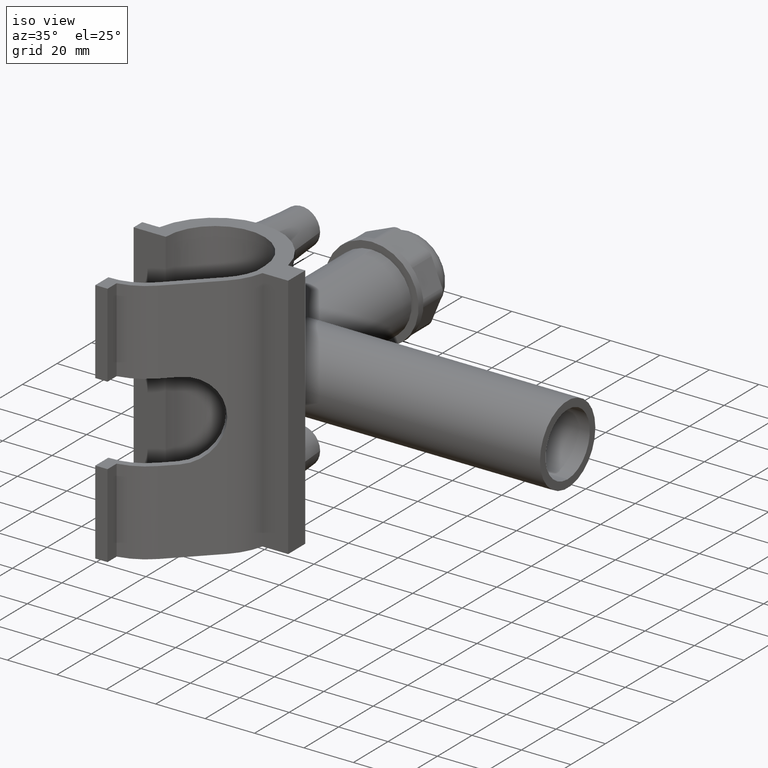
[diagram: clean part render]
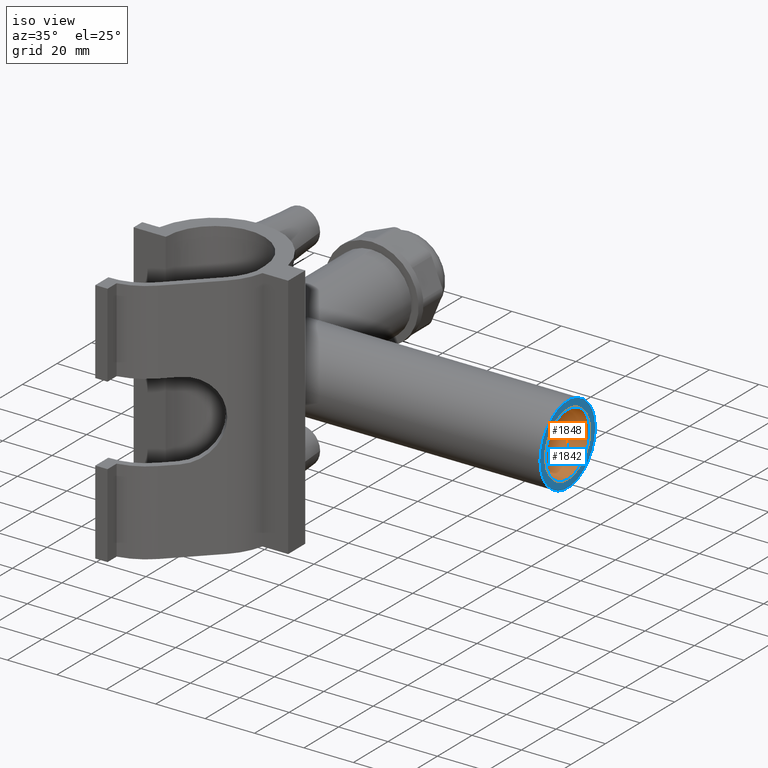
[diagram: same view with the hole feature highlighted: cylindrical wall and planar end face, labeled with their STEP entity ids]
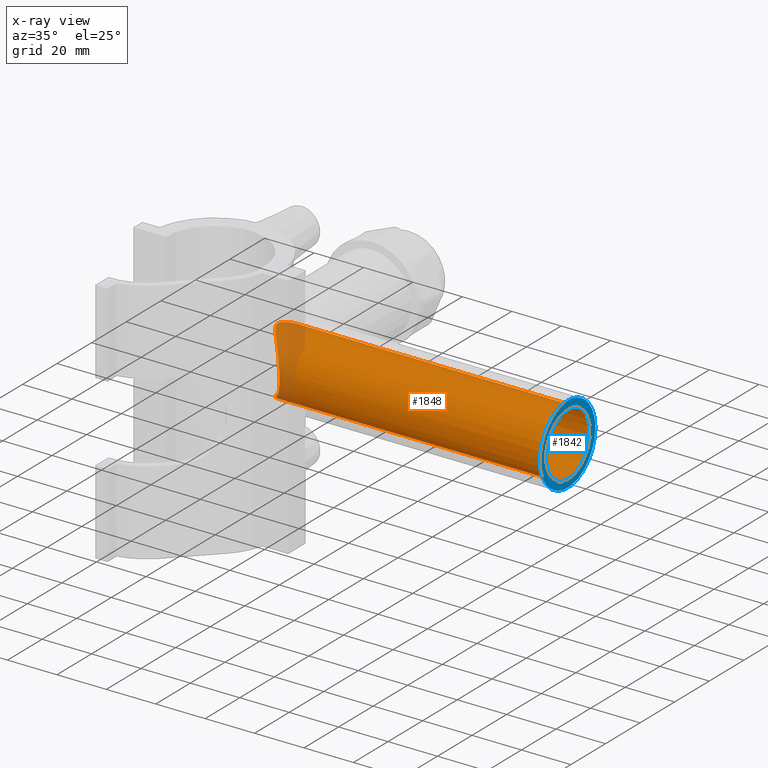
[diagram: x-ray of the same camera — body ghosted, the hole faces saturated]
A machine part, iso view. The highlighted faces form one hole feature of diameter 25.6 mm: the cylindrical wall (entity #1848, orange) and its adjacent planar end face (entity #1842, blue) — they share a circular edge in the B-rep.
The next image is the same camera in x-ray (body ghosted, the hole faces saturated) — the bore reads through the body.
Wall:
#62=FACE_BOUND('',#417,.T.);
#88=B_SPLINE_CURVE_WITH_KNOTS('',3,(#3506,#3507,#3508,#3509,#3510,#3511,
#3512,#3513,#3514,#3515,#3516,#3517,#3518,#3519,#3520,#3521,#3522,#3523,
#3524,#3525,#3526,#3527,#3528,#3529,#3530,#3531,#3532,#3533,#3534,#3535,
#3536,#3537,#3538,#3539,#3540,#3541,#3542,#3543,#3544,#3545,#3546,#3547,
#3548,#3549,#3550,#3551,#3552,#3553,#3554,#3555,#3556,#3557,#3558,#3559,
#3560,#3561,#3562,#3563,#3564,#3565,#3566,#3567,#3568,#3569,#3570,#3571),
 .UNSPECIFIED.,.T.,.F.,(4,2,2,2,2,2,2,2,2,2,2,2,2,2,2,2,2,2,2,2,2,2,2,2,
2,2,2,2,2,2,2,2,4),(0.,0.15231010215146,0.30462020430292,0.609240408605839,
0.913860612908759,1.21848081721168,1.74335062384617,2.00578552716342,2.26822043048067,
2.53065533379791,2.79309023711516,3.31796004374965,3.62258024805257,3.92720045235549,
4.2318206566584,4.38413075880986,4.53644086096132,4.68875096311278,4.84106106526424,
5.14568126956716,5.45030147387007,5.75492167817299,6.27979148480748,6.54222638812473,
6.80466129144198,7.06709619475922,7.32953109807647,7.85440090471097,8.15902110901389,
8.46364131331681,8.76826151761973,8.92057161977118,9.07288172192265),
 .UNSPECIFIED.);
#149=CIRCLE('',#2024,12.8);
#193=CYLINDRICAL_SURFACE('',#2033,12.8);
#285=FACE_OUTER_BOUND('',#416,.T.);
#416=EDGE_LOOP('',(#1559));
#417=EDGE_LOOP('',(#1560));
#866=VERTEX_POINT('',#3435);
#867=VERTEX_POINT('',#3505);
#1101=EDGE_CURVE('',#866,#866,#149,.T.);
#1106=EDGE_CURVE('',#867,#867,#88,.T.);
#1559=ORIENTED_EDGE('',*,*,#1106,.T.);
#1560=ORIENTED_EDGE('',*,*,#1101,.T.);
#1848=ADVANCED_FACE('',(#285,#62),#193,.F.);
#2024=AXIS2_PLACEMENT_3D('',#3436,#2464,#2465);
#2033=AXIS2_PLACEMENT_3D('',#3504,#2482,#2483);
#2464=DIRECTION('center_axis',(1.,0.,0.));
#2465=DIRECTION('ref_axis',(0.,0.,-1.));
#2482=DIRECTION('center_axis',(1.,0.,0.));
#2483=DIRECTION('ref_axis',(0.,1.,0.));
#3435=CARTESIAN_POINT('',(121.,31.,-12.8));
#3436=CARTESIAN_POINT('Origin',(121.,31.,0.));
#3504=CARTESIAN_POINT('Origin',(60.5,31.,0.));
#3505=CARTESIAN_POINT('',(3.61247837363759,31.,-12.8));
#3506=CARTESIAN_POINT('Ctrl Pts',(3.61247837363759,31.,-12.8));
#3507=CARTESIAN_POINT('Ctrl Pts',(3.61247837363759,30.4922996594951,-12.8));
#3508=CARTESIAN_POINT('Ctrl Pts',(3.71671602243438,30.0385877521636,-12.7711384494996));
#3509=CARTESIAN_POINT('Ctrl Pts',(4.02496845915508,29.1804630191824,-12.6773648736366));
#3510=CARTESIAN_POINT('Ctrl Pts',(4.22985235914196,28.7764261254798,-12.6118729158195));
#3511=CARTESIAN_POINT('Ctrl Pts',(4.92730452953759,27.588266374039,-12.3634592208676));
#3512=CARTESIAN_POINT('Ctrl Pts',(5.49729908355164,26.8325923925732,-12.1297953606746));
#3513=CARTESIAN_POINT('Ctrl Pts',(6.70552740418378,25.3333354961506,-11.5060043023413));
#3514=CARTESIAN_POINT('Ctrl Pts',(7.34136216675853,24.6011417463008,-11.1172980655483));
#3515=CARTESIAN_POINT('Ctrl Pts',(8.58221704719722,23.2087076208439,-10.1899688876973));
#3516=CARTESIAN_POINT('Ctrl Pts',(9.18786449468263,22.5491807170346,-9.65111431541026));
#3517=CARTESIAN_POINT('Ctrl Pts',(10.7056563613251,20.9149609155786,-8.0168945139542));
#3518=CARTESIAN_POINT('Ctrl Pts',(11.6349345280023,19.9382795890255,-6.66277253653993));
#3519=CARTESIAN_POINT('Ctrl Pts',(12.6094824793909,18.9186491902428,-4.31387521545472));
#3520=CARTESIAN_POINT('Ctrl Pts',(12.8669658432843,18.6504539172004,-3.47853228655112));
#3521=CARTESIAN_POINT('Ctrl Pts',(13.212299403894,18.2910529949725,-1.75901715639641));
#3522=CARTESIAN_POINT('Ctrl Pts',(13.3,18.2,-0.874783011057492));
#3523=CARTESIAN_POINT('Ctrl Pts',(13.3,18.2,0.874783011057487));
#3524=CARTESIAN_POINT('Ctrl Pts',(13.212299403894,18.2910529949725,1.7590171563964));
#3525=CARTESIAN_POINT('Ctrl Pts',(12.8669658432843,18.6504539172004,3.47853228655111));
#3526=CARTESIAN_POINT('Ctrl Pts',(12.6094824793909,18.9186491902428,4.31387521545471));
#3527=CARTESIAN_POINT('Ctrl Pts',(11.6349345280023,19.9382795890255,6.66277253653993));
#3528=CARTESIAN_POINT('Ctrl Pts',(10.7056563613252,20.9149609155786,8.0168945139542));
#3529=CARTESIAN_POINT('Ctrl Pts',(9.18786449468268,22.5491807170346,9.65111431541026));
#3530=CARTESIAN_POINT('Ctrl Pts',(8.58221704719728,23.2087076208438,10.1899688876973));
#3531=CARTESIAN_POINT('Ctrl Pts',(7.34136216675861,24.6011417463008,11.1172980655483));
#3532=CARTESIAN_POINT('Ctrl Pts',(6.70552740418387,25.3333354961505,11.5060043023412));
#3533=CARTESIAN_POINT('Ctrl Pts',(5.49729908355175,26.8325923925732,12.1297953606746));
#3534=CARTESIAN_POINT('Ctrl Pts',(4.9273045295377,27.588266374039,12.3634592208676));
#3535=CARTESIAN_POINT('Ctrl Pts',(4.22985235914209,28.7764261254798,12.6118729158195));
#3536=CARTESIAN_POINT('Ctrl Pts',(4.02496845915522,29.1804630191824,12.6773648736366));
#3537=CARTESIAN_POINT('Ctrl Pts',(3.71671602243453,30.0385877521637,12.7711384494996));
#3538=CARTESIAN_POINT('Ctrl Pts',(3.61247837363775,30.4922996594951,12.8));
#3539=CARTESIAN_POINT('Ctrl Pts',(3.61247837363774,31.5077003405049,12.8));
#3540=CARTESIAN_POINT('Ctrl Pts',(3.71671602243453,31.9614122478363,12.7711384494996));
#3541=CARTESIAN_POINT('Ctrl Pts',(4.02496845915522,32.8195369808176,12.6773648736366));
#3542=CARTESIAN_POINT('Ctrl Pts',(4.22985235914209,33.2235738745202,12.6118729158195));
#3543=CARTESIAN_POINT('Ctrl Pts',(4.9273045295377,34.411733625961,12.3634592208676));
#3544=CARTESIAN_POINT('Ctrl Pts',(5.49729908355174,35.1674076074268,12.1297953606746));
#3545=CARTESIAN_POINT('Ctrl Pts',(6.70552740418386,36.6666645038494,11.5060043023412));
#3546=CARTESIAN_POINT('Ctrl Pts',(7.3413621667586,37.3988582536992,11.1172980655483));
#3547=CARTESIAN_POINT('Ctrl Pts',(8.58221704719727,38.7912923791561,10.1899688876973));
#3548=CARTESIAN_POINT('Ctrl Pts',(9.18786449468268,39.4508192829654,9.65111431541026));
#3549=CARTESIAN_POINT('Ctrl Pts',(10.7056563613252,41.0850390844214,8.0168945139542));
#3550=CARTESIAN_POINT('Ctrl Pts',(11.6349345280023,42.0617204109745,6.66277253653994));
#3551=CARTESIAN_POINT('Ctrl Pts',(12.6094824793909,43.0813508097572,4.31387521545472));
#3552=CARTESIAN_POINT('Ctrl Pts',(12.8669658432843,43.3495460827996,3.47853228655111));
#3553=CARTESIAN_POINT('Ctrl Pts',(13.212299403894,43.7089470050276,1.75901715639641));
#3554=CARTESIAN_POINT('Ctrl Pts',(13.3,43.8,0.874783011057492));
#3555=CARTESIAN_POINT('Ctrl Pts',(13.3,43.8,-0.874783011057486));
#3556=CARTESIAN_POINT('Ctrl Pts',(13.212299403894,43.7089470050276,-1.7590171563964));
#3557=CARTESIAN_POINT('Ctrl Pts',(12.8669658432843,43.3495460827996,-3.47853228655111));
#3558=CARTESIAN_POINT('Ctrl Pts',(12.6094824793909,43.0813508097572,-4.31387521545471));
#3559=CARTESIAN_POINT('Ctrl Pts',(11.6349345280023,42.0617204109745,-6.66277253653994));
#3560=CARTESIAN_POINT('Ctrl Pts',(10.7056563613251,41.0850390844214,-8.01689451395421));
#3561=CARTESIAN_POINT('Ctrl Pts',(9.18786449468263,39.4508192829654,-9.65111431541027));
#3562=CARTESIAN_POINT('Ctrl Pts',(8.58221704719721,38.7912923791561,-10.1899688876973));
#3563=CARTESIAN_POINT('Ctrl Pts',(7.34136216675852,37.3988582536992,-11.1172980655483));
#3564=CARTESIAN_POINT('Ctrl Pts',(6.70552740418377,36.6666645038494,-11.5060043023413));
#3565=CARTESIAN_POINT('Ctrl Pts',(5.49729908355163,35.1674076074267,-12.1297953606746));
#3566=CARTESIAN_POINT('Ctrl Pts',(4.92730452953758,34.411733625961,-12.3634592208676));
#3567=CARTESIAN_POINT('Ctrl Pts',(4.22985235914196,33.2235738745202,-12.6118729158195));
#3568=CARTESIAN_POINT('Ctrl Pts',(4.02496845915507,32.8195369808176,-12.6773648736366));
#3569=CARTESIAN_POINT('Ctrl Pts',(3.71671602243438,31.9614122478364,-12.7711384494996));
#3570=CARTESIAN_POINT('Ctrl Pts',(3.61247837363758,31.5077003405049,-12.8));
#3571=CARTESIAN_POINT('Ctrl Pts',(3.61247837363759,31.,-12.8));
End face:
#59=FACE_BOUND('',#408,.T.);
#148=CIRCLE('',#2023,16.);
#149=CIRCLE('',#2024,12.8);
#279=FACE_OUTER_BOUND('',#407,.T.);
#407=EDGE_LOOP('',(#1533));
#408=EDGE_LOOP('',(#1534));
#865=VERTEX_POINT('',#3433);
#866=VERTEX_POINT('',#3435);
#1100=EDGE_CURVE('',#865,#865,#148,.T.);
#1101=EDGE_CURVE('',#866,#866,#149,.T.);
#1533=ORIENTED_EDGE('',*,*,#1100,.T.);
#1534=ORIENTED_EDGE('',*,*,#1101,.F.);
#1744=PLANE('',#2022);
#1842=ADVANCED_FACE('',(#279,#59),#1744,.T.);
#2022=AXIS2_PLACEMENT_3D('',#3432,#2460,#2461);
#2023=AXIS2_PLACEMENT_3D('',#3434,#2462,#2463);
#2024=AXIS2_PLACEMENT_3D('',#3436,#2464,#2465);
#2460=DIRECTION('center_axis',(1.,0.,0.));
#2461=DIRECTION('ref_axis',(0.,0.,-1.));
#2462=DIRECTION('center_axis',(1.,0.,0.));
#2463=DIRECTION('ref_axis',(0.,0.,-1.));
#2464=DIRECTION('center_axis',(1.,0.,0.));
#2465=DIRECTION('ref_axis',(0.,0.,-1.));
#3432=CARTESIAN_POINT('Origin',(121.,43.8,0.));
#3433=CARTESIAN_POINT('',(121.,47.,0.));
#3434=CARTESIAN_POINT('Origin',(121.,31.,0.));
#3435=CARTESIAN_POINT('',(121.,31.,-12.8));
#3436=CARTESIAN_POINT('Origin',(121.,31.,0.));